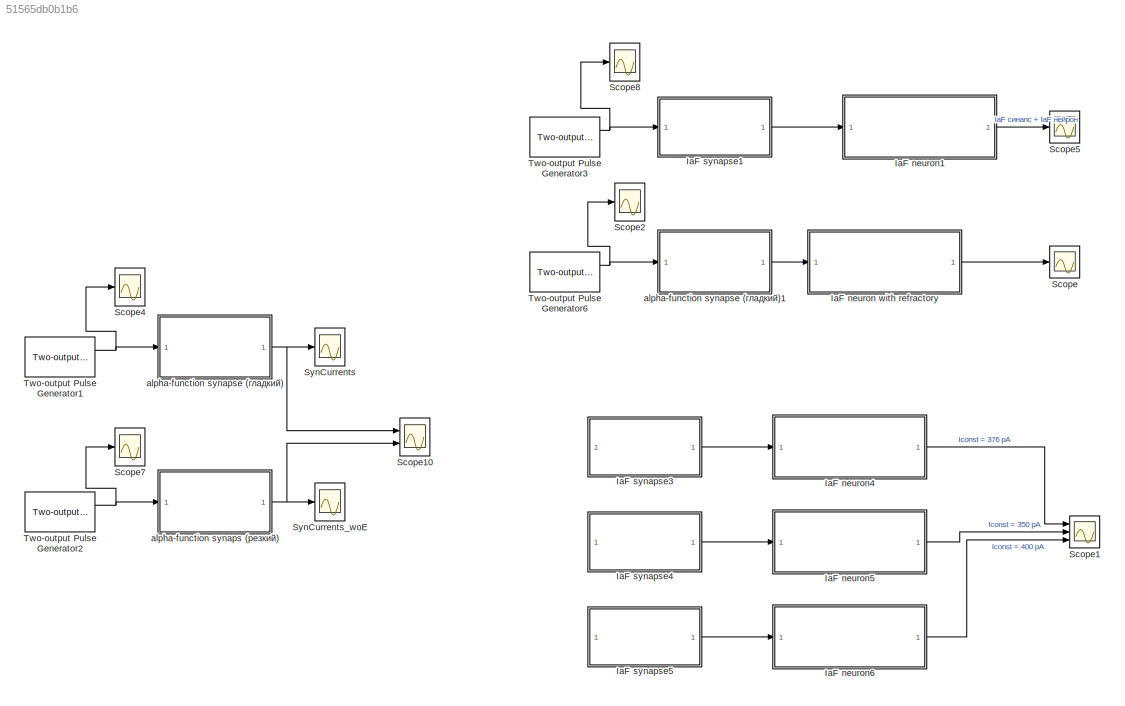
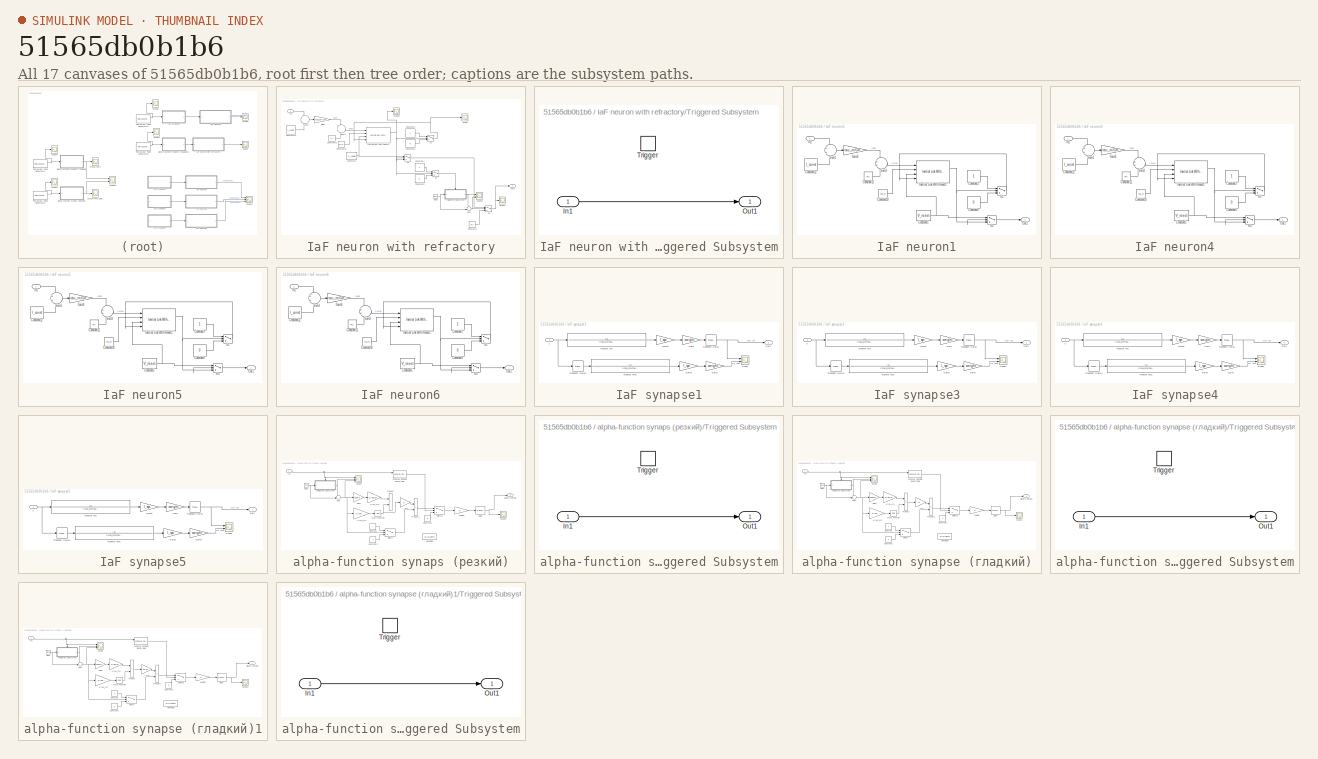
[diagram: thumbnail index - all 17 canvases of the model, root first then tree order]
MODEL slx_51565db0b1b6
KIND model
CONFIG AbsTol = auto
CONFIG EnableMultiTasking = off
CONFIG FixedStep = 0.0001
CONFIG MaxStep = auto
CONFIG MinStep = auto
CONFIG RelTol = 1e-3
CONFIG SampleTimeConstraint = Unconstrained
CONFIG SolverName = FixedStepAuto
CONFIG StartTime = 0.0
CONFIG StopTime = 0.4
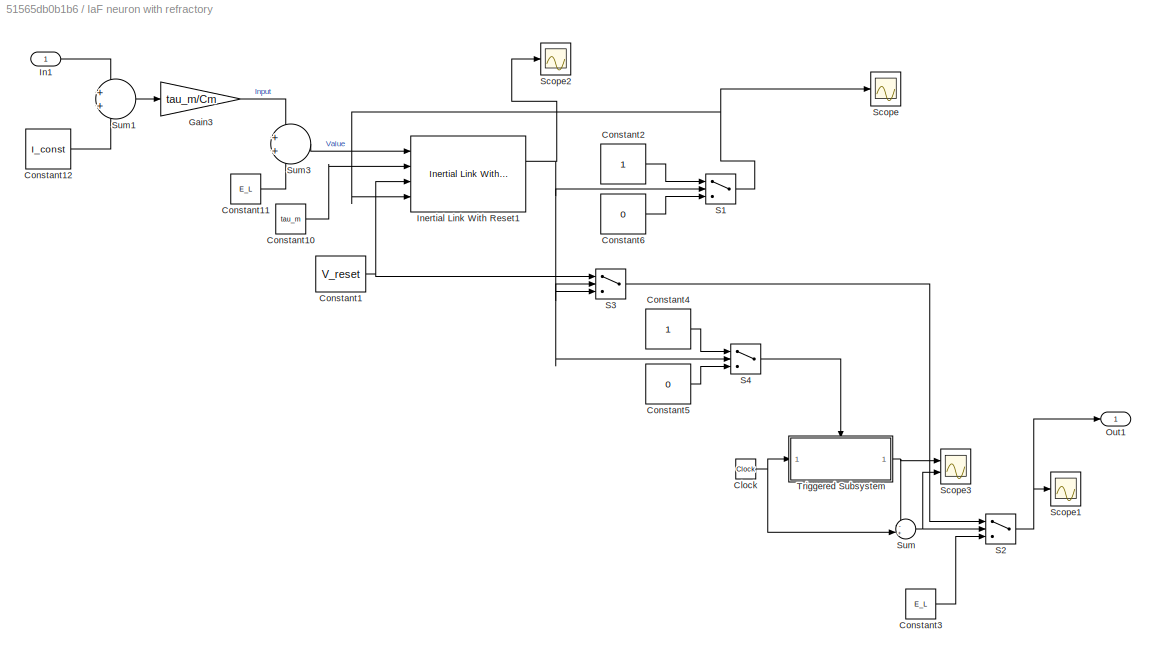
BLOCK [SubSystem] IaF neuron with refractory
  Commented = on
  Ports = [1, 1]
  RequestExecContextInheritance = off
BLOCK [Clock] IaF neuron with refractory/Clock
BLOCK [Constant] IaF neuron with refractory/Constant1
  Value = V_reset
BLOCK [Constant] IaF neuron with refractory/Constant10
  Value = tau_m
BLOCK [Constant] IaF neuron with refractory/Constant11
  Value = E_L
BLOCK [Constant] IaF neuron with refractory/Constant12
  Value = I_const
BLOCK [Constant] IaF neuron with refractory/Constant2
BLOCK [Constant] IaF neuron with refractory/Constant3
  Value = E_L
BLOCK [Constant] IaF neuron with refractory/Constant4
BLOCK [Constant] IaF neuron with refractory/Constant5
  Value = 0
BLOCK [Constant] IaF neuron with refractory/Constant6
  Value = 0
BLOCK [Gain] IaF neuron with refractory/Gain3
  Gain = tau_m/Cm
BLOCK [Inport] IaF neuron with refractory/In1
BLOCK [Reference] IaF neuron with refractory/Inertial Link With Reset1  REF=NeuroModelerLibrary/Support/Inertial Link With Reset
  Ports = [4, 2]
  SourceBlock = NeuroModelerLibrary/Support/Inertial Link With Reset
  SourceType = SubSystem
BLOCK [Outport] IaF neuron with refractory/Out1
BLOCK [Switch] IaF neuron with refractory/S1
  Threshold = V_th
BLOCK [Switch] IaF neuron with refractory/S2
  Threshold = tau_ref
BLOCK [Switch] IaF neuron with refractory/S3
  Threshold = V_th
BLOCK [Switch] IaF neuron with refractory/S4
  Threshold = V_th - 0.000005
BLOCK [Scope] IaF neuron with refractory/Scope
  Floating = off
  NumInputPorts = 1
  Ports = [1]
  ScopeSpecificationString = Simulink.scopes.TimeScopeBlockCfg('CurrentConfiguration', extmgr.ConfigurationSet(extmgr.Configuration('Core','General UI',true),extmgr.Configuration('Core','Source UI',true),extmgr.Configuration('Sources','WiredSimulink',true,'DataLoggingVariableName','ScopeData4'),extmgr.Configuration('Visuals','Time Domain',true,'SerializedDisplays',{struct('MinYLimReal','-1.00000','MaxYLimReal','1.00000','YLab...<+1412ch>
BLOCK [Scope] IaF neuron with refractory/Scope1
  Floating = off
  NumInputPorts = 1
  Ports = [1]
  ScopeSpecificationString = Simulink.scopes.TimeScopeBlockCfg('CurrentConfiguration', extmgr.ConfigurationSet(extmgr.Configuration('Core','General UI',true),extmgr.Configuration('Core','Source UI',true),extmgr.Configuration('Sources','WiredSimulink',true,'DataLoggingVariableName','ScopeData5'),extmgr.Configuration('Visuals','Time Domain',true,'SerializedDisplays',{struct('MinYLimReal','-0.07187','MaxYLimReal','-0.05313','YLa...<+1460ch>
BLOCK [Scope] IaF neuron with refractory/Scope2
  Floating = off
  NumInputPorts = 1
  Ports = [1]
  ScopeSpecificationString = Simulink.scopes.TimeScopeBlockCfg('CurrentConfiguration', extmgr.ConfigurationSet(extmgr.Configuration('Core','General UI',true),extmgr.Configuration('Core','Source UI',true),extmgr.Configuration('Sources','WiredSimulink',true,'DataLoggingVariableName','ScopeData6'),extmgr.Configuration('Visuals','Time Domain',true,'SerializedDisplays',{struct('MinYLimReal','-0.055043','MaxYLimReal','-0.054982','Y...<+1467ch>
BLOCK [Scope] IaF neuron with refractory/Scope3
  Floating = off
  NumInputPorts = 2
  Ports = [2]
  ScopeSpecificationString = Simulink.scopes.TimeScopeBlockCfg('CurrentConfiguration', extmgr.ConfigurationSet(extmgr.Configuration('Core','General UI',true),extmgr.Configuration('Core','Source UI',true),extmgr.Configuration('Sources','WiredSimulink',true,'DataLoggingVariableName','ScopeData7'),extmgr.Configuration('Visuals','Time Domain',true,'SerializedDisplays',{struct('MinYLimReal','-0.05','MaxYLimReal','0.45','YLabelReal...<+1463ch>
BLOCK [Sum] IaF neuron with refractory/Sum
  Inputs = -+|
  Ports = [2, 1]
BLOCK [Sum] IaF neuron with refractory/Sum1
  Ports = [2, 1]
BLOCK [Sum] IaF neuron with refractory/Sum3
  Ports = [2, 1]
BLOCK [SubSystem] IaF neuron with refractory/Triggered Subsystem
  Ports = [1, 1, 0, 1]
  RequestExecContextInheritance = off
  TreatAsAtomicUnit = on
BLOCK [Inport] IaF neuron with refractory/Triggered Subsystem/In1
BLOCK [Outport] IaF neuron with refractory/Triggered Subsystem/Out1
BLOCK [TriggerPort] IaF neuron with refractory/Triggered Subsystem/Trigger
  Ports = []
  StatesWhenEnabling = held
  VariantControl = Variant
BLOCK [SubSystem] IaF neuron1
  Commented = on
  Ports = [1, 1]
  RequestExecContextInheritance = off
BLOCK [Constant] IaF neuron1/Constant1
  Value = V_reset
BLOCK [Constant] IaF neuron1/Constant10
  Value = tau_m
BLOCK [Constant] IaF neuron1/Constant11
  Value = E_L
BLOCK [Constant] IaF neuron1/Constant12
  Value = I_const
BLOCK [Constant] IaF neuron1/Constant2
BLOCK [Constant] IaF neuron1/Constant6
  Value = 0
BLOCK [Gain] IaF neuron1/Gain3
  Gain = tau_m/Cm
BLOCK [Inport] IaF neuron1/In1
BLOCK [Reference] IaF neuron1/Inertial Link With Reset1  REF=NeuroModelerLibrary/Support/Inertial Link With Reset
  Ports = [4, 2]
  SourceBlock = NeuroModelerLibrary/Support/Inertial Link With Reset
  SourceType = SubSystem
BLOCK [Outport] IaF neuron1/Out1
BLOCK [Switch] IaF neuron1/S1
  Threshold = V_th
BLOCK [Switch] IaF neuron1/S3
  Threshold = V_th
BLOCK [Sum] IaF neuron1/Sum1
  Ports = [2, 1]
BLOCK [Sum] IaF neuron1/Sum3
  Ports = [2, 1]
BLOCK [SubSystem] IaF neuron4
  Commented = on
  Ports = [1, 1]
  RequestExecContextInheritance = off
BLOCK [Constant] IaF neuron4/Constant1
  Value = V_reset
BLOCK [Constant] IaF neuron4/Constant10
  Value = tau_m
BLOCK [Constant] IaF neuron4/Constant11
  Value = E_L
BLOCK [Constant] IaF neuron4/Constant12
  Value = I_const
BLOCK [Constant] IaF neuron4/Constant2
BLOCK [Constant] IaF neuron4/Constant6
  Value = 0
BLOCK [Gain] IaF neuron4/Gain3
  Gain = tau_m/Cm
BLOCK [Inport] IaF neuron4/In1
BLOCK [Reference] IaF neuron4/Inertial Link With Reset1  REF=NeuroModelerLibrary/Support/Inertial Link With Reset
  Ports = [4, 2]
  SourceBlock = NeuroModelerLibrary/Support/Inertial Link With Reset
  SourceType = SubSystem
BLOCK [Outport] IaF neuron4/Out1
BLOCK [Switch] IaF neuron4/S1
  Threshold = V_th
BLOCK [Switch] IaF neuron4/S3
  Threshold = V_th
BLOCK [Sum] IaF neuron4/Sum1
  Ports = [2, 1]
BLOCK [Sum] IaF neuron4/Sum3
  Ports = [2, 1]
BLOCK [SubSystem] IaF neuron5
  Commented = on
  Ports = [1, 1]
  RequestExecContextInheritance = off
BLOCK [Constant] IaF neuron5/Constant1
  Value = V_reset
BLOCK [Constant] IaF neuron5/Constant10
  Value = tau_m
BLOCK [Constant] IaF neuron5/Constant11
  Value = E_L
BLOCK [Constant] IaF neuron5/Constant12
  Value = I_const
BLOCK [Constant] IaF neuron5/Constant2
BLOCK [Constant] IaF neuron5/Constant6
  Value = 0
BLOCK [Gain] IaF neuron5/Gain3
  Gain = tau_m/Cm
BLOCK [Inport] IaF neuron5/In1
BLOCK [Reference] IaF neuron5/Inertial Link With Reset1  REF=NeuroModelerLibrary/Support/Inertial Link With Reset
  Ports = [4, 2]
  SourceBlock = NeuroModelerLibrary/Support/Inertial Link With Reset
  SourceType = SubSystem
BLOCK [Outport] IaF neuron5/Out1
BLOCK [Switch] IaF neuron5/S1
  Threshold = V_th
BLOCK [Switch] IaF neuron5/S3
  Threshold = V_th
BLOCK [Sum] IaF neuron5/Sum1
  Ports = [2, 1]
BLOCK [Sum] IaF neuron5/Sum3
  Ports = [2, 1]
BLOCK [SubSystem] IaF neuron6
  Commented = on
  Ports = [1, 1]
  RequestExecContextInheritance = off
BLOCK [Constant] IaF neuron6/Constant1
  Value = V_reset
BLOCK [Constant] IaF neuron6/Constant10
  Value = tau_m
BLOCK [Constant] IaF neuron6/Constant11
  Value = E_L
BLOCK [Constant] IaF neuron6/Constant12
  Value = I_const
BLOCK [Constant] IaF neuron6/Constant2
BLOCK [Constant] IaF neuron6/Constant6
  Value = 0
BLOCK [Gain] IaF neuron6/Gain3
  Gain = tau_m/Cm
BLOCK [Inport] IaF neuron6/In1
BLOCK [Reference] IaF neuron6/Inertial Link With Reset1  REF=NeuroModelerLibrary/Support/Inertial Link With Reset
  Ports = [4, 2]
  SourceBlock = NeuroModelerLibrary/Support/Inertial Link With Reset
  SourceType = SubSystem
BLOCK [Outport] IaF neuron6/Out1
BLOCK [Switch] IaF neuron6/S1
  Threshold = V_th
BLOCK [Switch] IaF neuron6/S3
  Threshold = V_th
BLOCK [Sum] IaF neuron6/Sum1
  Ports = [2, 1]
BLOCK [Sum] IaF neuron6/Sum3
  Ports = [2, 1]
BLOCK [SubSystem] IaF synapse1
  Commented = on
  Ports = [1, 1]
  RequestExecContextInheritance = off
BLOCK [Gain] IaF synapse1/Gain
  Gain = weight
BLOCK [Gain] IaF synapse1/Gain1
  Gain = weight
BLOCK [Gain] IaF synapse1/Gain2
  Gain = I_syn
BLOCK [Gain] IaF synapse1/Gain6
  Gain = I_syn
BLOCK [Outport] IaF synapse1/Out1
BLOCK [Scope] IaF synapse1/Scope
  Floating = off
  NumInputPorts = 2
  Ports = [2]
  ScopeSpecificationString = Simulink.scopes.TimeScopeBlockCfg('CurrentConfiguration', extmgr.ConfigurationSet(extmgr.Configuration('Core','General UI',true),extmgr.Configuration('Core','Source UI',true),extmgr.Configuration('Sources','WiredSimulink',true,'DataLoggingVariableName','ScopeData2'),extmgr.Configuration('Visuals','Time Domain',true,'SerializedDisplays',{struct('MinYLimReal','-0.0000000002','MaxYLimReal','0.0000000...<+1515ch>  <repeated x4 — deduplicated; at blocks: Scope>
BLOCK [TransferFcn] IaF synapse1/Transfer Fcn
  Denominator = [(tau_syn*tau_syn)  (2*tau_syn)  1]
BLOCK [TransferFcn] IaF synapse1/Transfer Fcn1
  Denominator = [(tau_syn*tau_syn)  (2*tau_syn)  1]
BLOCK [TransportDelay] IaF synapse1/Transport Delay
  DelayTime = delay
  Ports = [1, 1]
BLOCK [TransportDelay] IaF synapse1/Transport Delay1
  DelayTime = delay
  Ports = [1, 1]
BLOCK [Inport] IaF synapse1/u
BLOCK [SubSystem] IaF synapse3
  Commented = on
  Ports = [1, 1]
  RequestExecContextInheritance = off
BLOCK [Gain] IaF synapse3/Gain
  Gain = weight
BLOCK [Gain] IaF synapse3/Gain1
  Gain = weight
BLOCK [Gain] IaF synapse3/Gain2
  Gain = I_syn
BLOCK [Gain] IaF synapse3/Gain6
  Gain = I_syn
BLOCK [Outport] IaF synapse3/Out1
BLOCK [Scope] IaF synapse3/Scope
  Floating = off
  NumInputPorts = 2
  Ports = [2]
BLOCK [TransferFcn] IaF synapse3/Transfer Fcn
  Denominator = [(tau_syn*tau_syn)  (2*tau_syn)  1]
BLOCK [TransferFcn] IaF synapse3/Transfer Fcn1
  Denominator = [(tau_syn*tau_syn)  (2*tau_syn)  1]
BLOCK [TransportDelay] IaF synapse3/Transport Delay
  DelayTime = delay
  Ports = [1, 1]
BLOCK [TransportDelay] IaF synapse3/Transport Delay1
  DelayTime = delay
  Ports = [1, 1]
BLOCK [Inport] IaF synapse3/u
BLOCK [SubSystem] IaF synapse4
  Commented = on
  Ports = [1, 1]
  RequestExecContextInheritance = off
BLOCK [Gain] IaF synapse4/Gain
  Gain = weight
BLOCK [Gain] IaF synapse4/Gain1
  Gain = weight
BLOCK [Gain] IaF synapse4/Gain2
  Gain = I_syn
BLOCK [Gain] IaF synapse4/Gain6
  Gain = I_syn
BLOCK [Outport] IaF synapse4/Out1
BLOCK [Scope] IaF synapse4/Scope
  Floating = off
  NumInputPorts = 2
  Ports = [2]
BLOCK [TransferFcn] IaF synapse4/Transfer Fcn
  Denominator = [(tau_syn*tau_syn)  (2*tau_syn)  1]
BLOCK [TransferFcn] IaF synapse4/Transfer Fcn1
  Denominator = [(tau_syn*tau_syn)  (2*tau_syn)  1]
BLOCK [TransportDelay] IaF synapse4/Transport Delay
  DelayTime = delay
  Ports = [1, 1]
BLOCK [TransportDelay] IaF synapse4/Transport Delay1
  DelayTime = delay
  Ports = [1, 1]
BLOCK [Inport] IaF synapse4/u
BLOCK [SubSystem] IaF synapse5
  Commented = on
  Ports = [1, 1]
  RequestExecContextInheritance = off
BLOCK [Gain] IaF synapse5/Gain
  Gain = weight
BLOCK [Gain] IaF synapse5/Gain1
  Gain = weight
BLOCK [Gain] IaF synapse5/Gain2
  Gain = I_syn
BLOCK [Gain] IaF synapse5/Gain6
  Gain = I_syn
BLOCK [Outport] IaF synapse5/Out1
BLOCK [Scope] IaF synapse5/Scope
  Floating = off
  NumInputPorts = 2
  Ports = [2]
BLOCK [TransferFcn] IaF synapse5/Transfer Fcn
  Denominator = [(tau_syn*tau_syn)  (2*tau_syn)  1]
BLOCK [TransferFcn] IaF synapse5/Transfer Fcn1
  Denominator = [(tau_syn*tau_syn)  (2*tau_syn)  1]
BLOCK [TransportDelay] IaF synapse5/Transport Delay
  DelayTime = delay
  Ports = [1, 1]
BLOCK [TransportDelay] IaF synapse5/Transport Delay1
  DelayTime = delay
  Ports = [1, 1]
BLOCK [Inport] IaF synapse5/u
BLOCK [Scope] Scope
  Commented = on
  Floating = off
  NumInputPorts = 1
  Ports = [1]
  ScopeSpecificationString = Simulink.scopes.TimeScopeBlockCfg('CurrentConfiguration', extmgr.ConfigurationSet(extmgr.Configuration('Core','General UI',true),extmgr.Configuration('Core','Source UI',true),extmgr.Configuration('Sources','WiredSimulink',true,'DataLoggingVariableName','ScopeData1'),extmgr.Configuration('Visuals','Time Domain',true,'SerializedDisplays',{struct('MinYLimReal','-0.07187','MaxYLimReal','-0.05313','YLa...<+1493ch>
BLOCK [Scope] Scope1
  Commented = on
  Floating = off
  NumInputPorts = 3
  Ports = [3]
  ScopeSpecificationString = Simulink.scopes.TimeScopeBlockCfg('CurrentConfiguration', extmgr.ConfigurationSet(extmgr.Configuration('Core','General UI',true),extmgr.Configuration('Core','Source UI',true),extmgr.Configuration('Sources','WiredSimulink',true,'DataLoggingVariableName','Voltages','DataLogging',true,'DataLoggingSaveFormat','StructureWithTime'),extmgr.Configuration('Visuals','Time Domain',true,'SerializedDisplays',{...<+2882ch>
BLOCK [Scope] Scope10
  Floating = off
  NumInputPorts = 2
  Ports = [2]
  ScopeSpecificationString = Simulink.scopes.TimeScopeBlockCfg('CurrentConfiguration', extmgr.ConfigurationSet(extmgr.Configuration('Core','General UI',true),extmgr.Configuration('Core','Source UI',true),extmgr.Configuration('Sources','WiredSimulink',true,'DataLoggingVariableName','ScopeData1'),extmgr.Configuration('Visuals','Time Domain',true,'SerializedDisplays',{struct('MinYLimReal','-0.125','MaxYLimReal','1.125','YLabelRe...<+1535ch>
BLOCK [Scope] Scope2
  Commented = on
  Floating = off
  NumInputPorts = 1
  Ports = [1]
  ScopeSpecificationString = Simulink.scopes.TimeScopeBlockCfg('CurrentConfiguration', extmgr.ConfigurationSet(extmgr.Configuration('Core','General UI',true),extmgr.Configuration('Core','Source UI',true),extmgr.Configuration('Sources','WiredSimulink',true,'DataLoggingVariableName','ScopeData1'),extmgr.Configuration('Visuals','Time Domain',true,'SerializedDisplays',{struct('MinYLimReal','-0.125','MaxYLimReal','1.125','YLabelRe...<+1499ch>
BLOCK [Scope] Scope4
  Floating = off
  NumInputPorts = 1
  Ports = [1]
  ScopeSpecificationString = Simulink.scopes.TimeScopeBlockCfg('CurrentConfiguration', extmgr.ConfigurationSet(extmgr.Configuration('Core','General UI',true),extmgr.Configuration('Core','Source UI',true),extmgr.Configuration('Sources','WiredSimulink',true,'DataLoggingVariableName','ScopeData1'),extmgr.Configuration('Visuals','Time Domain',true,'SerializedDisplays',{struct('MinYLimReal','-0.125','MaxYLimReal','1.125','YLabelRe...<+1499ch>
BLOCK [Scope] Scope5
  Commented = on
  Floating = off
  NumInputPorts = 1
  Ports = [1]
  ScopeSpecificationString = Simulink.scopes.TimeScopeBlockCfg('CurrentConfiguration', extmgr.ConfigurationSet(extmgr.Configuration('Core','General UI',true),extmgr.Configuration('Core','Source UI',true),extmgr.Configuration('Sources','WiredSimulink',true,'DataLoggingVariableName','ScopeData2'),extmgr.Configuration('Visuals','Time Domain',true),extmgr.Configuration('Tools','Plot Navigation',true),extmgr.Configuration('Tools',...<+40ch>
BLOCK [Scope] Scope7
  Floating = off
  NumInputPorts = 1
  Ports = [1]
  ScopeSpecificationString = Simulink.scopes.TimeScopeBlockCfg('CurrentConfiguration', extmgr.ConfigurationSet(extmgr.Configuration('Core','General UI',true),extmgr.Configuration('Core','Source UI',true),extmgr.Configuration('Sources','WiredSimulink',true,'DataLoggingVariableName','ScopeData2'),extmgr.Configuration('Visuals','Time Domain',true,'SerializedDisplays',{struct('MinYLimReal','-0.125','MaxYLimReal','1.125','YLabelRe...<+1499ch>
BLOCK [Scope] Scope8
  Commented = on
  Floating = off
  NumInputPorts = 1
  Ports = [1]
  ScopeSpecificationString = Simulink.scopes.TimeScopeBlockCfg('CurrentConfiguration', extmgr.ConfigurationSet(extmgr.Configuration('Core','General UI',true),extmgr.Configuration('Core','Source UI',true),extmgr.Configuration('Sources','WiredSimulink',true,'DataLoggingVariableName','ScopeData3'),extmgr.Configuration('Visuals','Time Domain',true,'SerializedDisplays',{struct('MinYLimReal','-0.125','MaxYLimReal','1.125','YLabelRe...<+1499ch>
BLOCK [Scope] SynCurrents
  Floating = off
  NumInputPorts = 1
  Ports = [1]
  ScopeSpecificationString = Simulink.scopes.TimeScopeBlockCfg('CurrentConfiguration', extmgr.ConfigurationSet(extmgr.Configuration('Core','General UI',true),extmgr.Configuration('Core','Source UI',true),extmgr.Configuration('Sources','WiredSimulink',true,'DataLoggingVariableName','SynCurrents','DataLogging',true,'DataLoggingSaveFormat','StructureWithTime'),extmgr.Configuration('Visuals','Time Domain',true,'SerializedDisplays...<+1566ch>
BLOCK [Scope] SynCurrents_woE
  Floating = off
  NumInputPorts = 1
  Ports = [1]
  ScopeSpecificationString = Simulink.scopes.TimeScopeBlockCfg('CurrentConfiguration', extmgr.ConfigurationSet(extmgr.Configuration('Core','General UI',true),extmgr.Configuration('Core','Source UI',true),extmgr.Configuration('Sources','WiredSimulink',true,'DataLoggingVariableName','SynCurrents_woE','DataLogging',true,'DataLoggingSaveFormat','StructureWithTime'),extmgr.Configuration('Visuals','Time Domain',true,'SerializedDisp...<+1568ch>
BLOCK [Reference] Two-output Pulse Generator1  REF=NeuroModelerLibrary/Support/Two-output
Pulse Generator
  Ports = [0, 2]
  SourceBlock = NeuroModelerLibrary/Support/Two-output\nPulse Generator
BLOCK [Reference] Two-output Pulse Generator2  REF=NeuroModelerLibrary/Support/Two-output
Pulse Generator
  Ports = [0, 2]
  SourceBlock = NeuroModelerLibrary/Support/Two-output\nPulse Generator
BLOCK [Reference] Two-output Pulse Generator3  REF=NeuroModelerLibrary/Support/Two-output
Pulse Generator
  Commented = on
  Ports = [0, 2]
  SourceBlock = NeuroModelerLibrary/Support/Two-output\nPulse Generator
BLOCK [Reference] Two-output Pulse Generator6  REF=NeuroModelerLibrary/Support/Two-output
Pulse Generator
  Commented = on
  Ports = [0, 2]
  SourceBlock = NeuroModelerLibrary/Support/Two-output\nPulse Generator
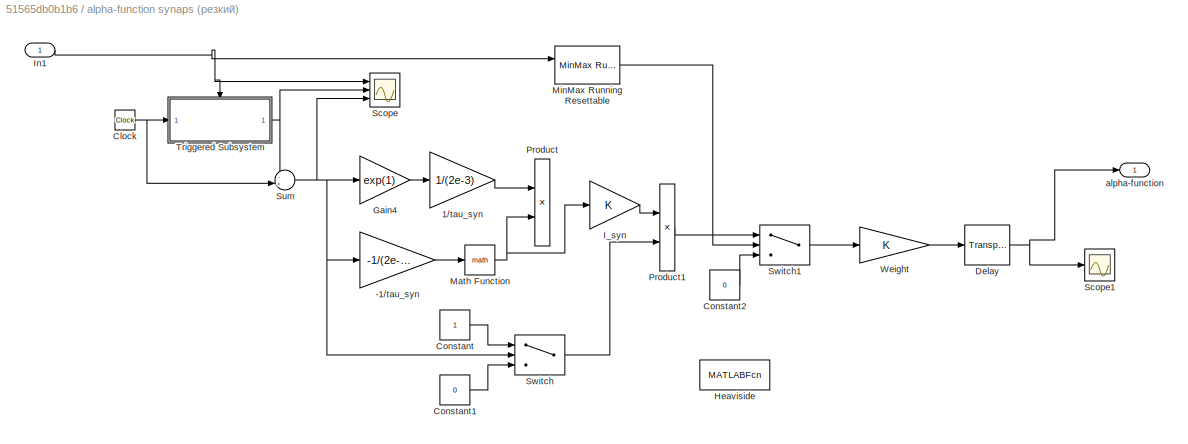
BLOCK [SubSystem] alpha-function synaps (резкий)
  Ports = [1, 1]
  RequestExecContextInheritance = off
BLOCK [Gain] alpha-function synaps (резкий)/-1//tau_syn
  Gain = -1/(2e-3)
BLOCK [Gain] alpha-function synaps (резкий)/1//tau_syn
  Gain = 1/(2e-3)
BLOCK [Clock] alpha-function synaps (резкий)/Clock
BLOCK [Constant] alpha-function synaps (резкий)/Constant
BLOCK [Constant] alpha-function synaps (резкий)/Constant1
  Value = 0
BLOCK [Constant] alpha-function synaps (резкий)/Constant2
  Value = 0
BLOCK [TransportDelay] alpha-function synaps (резкий)/Delay
  DelayTime = 0.001
  Ports = [1, 1]
BLOCK [Gain] alpha-function synaps (резкий)/Gain4
  Gain = exp(1)
BLOCK [MATLABFcn] alpha-function synaps (резкий)/Heaviside
  Commented = on
  MATLABFcn = heaviside(u)
  Output1D = off
  OutputSignalType = real
  Ports = [1, 1]
BLOCK [Gain] alpha-function synaps (резкий)/I_syn
BLOCK [Inport] alpha-function synaps (резкий)/In1
BLOCK [Math] alpha-function synaps (резкий)/Math Function
  Ports = [1, 1]
BLOCK [Reference] alpha-function synaps (резкий)/MinMax Running Resettable  REF=simulink/Math
Operations/MinMax
Running
Resettable
  Ports = [2, 1]
  SourceBlock = simulink/Math\nOperations/MinMax\nRunning\nResettable
  SourceProductBaseCode = SL
  SourceType = MinMax Running Resettable
BLOCK [Product] alpha-function synaps (резкий)/Product
  Ports = [2, 1]
BLOCK [Product] alpha-function synaps (резкий)/Product1
  Ports = [2, 1]
BLOCK [Scope] alpha-function synaps (резкий)/Scope
  Floating = off
  NumInputPorts = 3
  Ports = [3]
  ScopeSpecificationString = Simulink.scopes.TimeScopeBlockCfg('CurrentConfiguration', extmgr.ConfigurationSet(extmgr.Configuration('Core','General UI',true),extmgr.Configuration('Core','Source UI',true),extmgr.Configuration('Sources','WiredSimulink',true,'DataLoggingVariableName','ScopeData3'),extmgr.Configuration('Visuals','Time Domain',true,'SerializedDisplays',{struct('MinYLimReal','-1.00000','MaxYLimReal','1.00000','YLab...<+2742ch>  <repeated x3 — deduplicated; at blocks: Scope>
BLOCK [Scope] alpha-function synaps (резкий)/Scope1
  Floating = off
  NumInputPorts = 1
  Ports = [1]
  ScopeSpecificationString = Simulink.scopes.TimeScopeBlockCfg('CurrentConfiguration', extmgr.ConfigurationSet(extmgr.Configuration('Core','General UI',true),extmgr.Configuration('Core','Source UI',true),extmgr.Configuration('Sources','WiredSimulink',true,'DataLoggingVariableName','ScopeData4'),extmgr.Configuration('Visuals','Time Domain',true,'SerializedDisplays',{struct('MinYLimReal','-0.000000001','MaxYLimReal','0.00000001...<+1503ch>  <repeated x3 — deduplicated; at blocks: Scope1>
BLOCK [Sum] alpha-function synaps (резкий)/Sum
  Inputs = -+|
  Ports = [2, 1]
BLOCK [Switch] alpha-function synaps (резкий)/Switch
  Criteria = u2 > Threshold
  InputSameDT = off
  SaturateOnIntegerOverflow = off
BLOCK [Switch] alpha-function synaps (резкий)/Switch1
  Criteria = u2 > Threshold
  InputSameDT = off
  SaturateOnIntegerOverflow = off
BLOCK [SubSystem] alpha-function synaps (резкий)/Triggered Subsystem
  Ports = [1, 1, 0, 1]
  RequestExecContextInheritance = off
  TreatAsAtomicUnit = on
BLOCK [Inport] alpha-function synaps (резкий)/Triggered Subsystem/In1
BLOCK [Outport] alpha-function synaps (резкий)/Triggered Subsystem/Out1
BLOCK [TriggerPort] alpha-function synaps (резкий)/Triggered Subsystem/Trigger
  Ports = []
  StatesWhenEnabling = held
  VariantControl = Variant
BLOCK [Gain] alpha-function synaps (резкий)/Weight
BLOCK [Outport] alpha-function synaps (резкий)/alpha-function
BLOCK [SubSystem] alpha-function synapse (гладкий)
  Ports = [1, 1]
  RequestExecContextInheritance = off
BLOCK [Gain] alpha-function synapse (гладкий)/-1//tau_syn
  Gain = -1/(2e-3)
BLOCK [Gain] alpha-function synapse (гладкий)/1//tau_syn
  Gain = 1/(2e-3)
BLOCK [Clock] alpha-function synapse (гладкий)/Clock
BLOCK [Constant] alpha-function synapse (гладкий)/Constant
BLOCK [Constant] alpha-function synapse (гладкий)/Constant1
  Value = 0
BLOCK [Constant] alpha-function synapse (гладкий)/Constant2
  Value = 0
BLOCK [TransportDelay] alpha-function synapse (гладкий)/Delay
  DelayTime = 0.001
  Ports = [1, 1]
BLOCK [Gain] alpha-function synapse (гладкий)/Gain4
  Gain = exp(1)
BLOCK [MATLABFcn] alpha-function synapse (гладкий)/Heaviside
  Commented = on
  MATLABFcn = heaviside(u)
  Output1D = off
  OutputSignalType = real
  Ports = [1, 1]
BLOCK [Gain] alpha-function synapse (гладкий)/I_syn
BLOCK [Inport] alpha-function synapse (гладкий)/In1
BLOCK [Math] alpha-function synapse (гладкий)/Math Function
  Ports = [1, 1]
BLOCK [Reference] alpha-function synapse (гладкий)/MinMax Running Resettable  REF=simulink/Math
Operations/MinMax
Running
Resettable
  Ports = [2, 1]
  SourceBlock = simulink/Math\nOperations/MinMax\nRunning\nResettable
  SourceProductBaseCode = SL
  SourceType = MinMax Running Resettable
BLOCK [Product] alpha-function synapse (гладкий)/Product
  Ports = [2, 1]
BLOCK [Product] alpha-function synapse (гладкий)/Product1
  Ports = [2, 1]
BLOCK [Scope] alpha-function synapse (гладкий)/Scope
  Floating = off
  NumInputPorts = 3
  Ports = [3]
BLOCK [Scope] alpha-function synapse (гладкий)/Scope1
  Floating = off
  NumInputPorts = 1
  Ports = [1]
BLOCK [Sum] alpha-function synapse (гладкий)/Sum
  Inputs = -+|
  Ports = [2, 1]
BLOCK [Switch] alpha-function synapse (гладкий)/Switch
  Criteria = u2 > Threshold
  InputSameDT = off
  SaturateOnIntegerOverflow = off
BLOCK [Switch] alpha-function synapse (гладкий)/Switch1
  Criteria = u2 > Threshold
  InputSameDT = off
  SaturateOnIntegerOverflow = off
BLOCK [SubSystem] alpha-function synapse (гладкий)/Triggered Subsystem
  Ports = [1, 1, 0, 1]
  RequestExecContextInheritance = off
  TreatAsAtomicUnit = on
BLOCK [Inport] alpha-function synapse (гладкий)/Triggered Subsystem/In1
BLOCK [Outport] alpha-function synapse (гладкий)/Triggered Subsystem/Out1
BLOCK [TriggerPort] alpha-function synapse (гладкий)/Triggered Subsystem/Trigger
  Ports = []
  StatesWhenEnabling = held
  VariantControl = Variant
BLOCK [Gain] alpha-function synapse (гладкий)/Weight
BLOCK [Outport] alpha-function synapse (гладкий)/alpha-function
BLOCK [SubSystem] alpha-function synapse (гладкий)1
  Commented = on
  Ports = [1, 1]
  RequestExecContextInheritance = off
BLOCK [Gain] alpha-function synapse (гладкий)1/-1//tau_syn
  Gain = -1/(2e-3)
BLOCK [Gain] alpha-function synapse (гладкий)1/1//tau_syn
  Gain = 1/(2e-3)
BLOCK [Clock] alpha-function synapse (гладкий)1/Clock
BLOCK [Constant] alpha-function synapse (гладкий)1/Constant
BLOCK [Constant] alpha-function synapse (гладкий)1/Constant1
  Value = 0
BLOCK [Constant] alpha-function synapse (гладкий)1/Constant2
  Value = 0
BLOCK [TransportDelay] alpha-function synapse (гладкий)1/Delay
  DelayTime = 0.001
  Ports = [1, 1]
BLOCK [Gain] alpha-function synapse (гладкий)1/Gain4
  Gain = exp(1)
BLOCK [MATLABFcn] alpha-function synapse (гладкий)1/Heaviside
  Commented = on
  MATLABFcn = heaviside(u)
  Output1D = off
  OutputSignalType = real
  Ports = [1, 1]
BLOCK [Gain] alpha-function synapse (гладкий)1/I_syn
  Gain = 1e-12
BLOCK [Inport] alpha-function synapse (гладкий)1/In1
BLOCK [Math] alpha-function synapse (гладкий)1/Math Function
  Ports = [1, 1]
BLOCK [Reference] alpha-function synapse (гладкий)1/MinMax Running Resettable  REF=simulink/Math
Operations/MinMax
Running
Resettable
  Ports = [2, 1]
  SourceBlock = simulink/Math\nOperations/MinMax\nRunning\nResettable
  SourceProductBaseCode = SL
  SourceType = MinMax Running Resettable
BLOCK [Product] alpha-function synapse (гладкий)1/Product
  Ports = [2, 1]
BLOCK [Product] alpha-function synapse (гладкий)1/Product1
  Ports = [2, 1]
BLOCK [Scope] alpha-function synapse (гладкий)1/Scope
  Floating = off
  NumInputPorts = 3
  Ports = [3]
BLOCK [Scope] alpha-function synapse (гладкий)1/Scope1
  Floating = off
  NumInputPorts = 1
  Ports = [1]
BLOCK [Sum] alpha-function synapse (гладкий)1/Sum
  Inputs = -+|
  Ports = [2, 1]
BLOCK [Switch] alpha-function synapse (гладкий)1/Switch
  Criteria = u2 > Threshold
  InputSameDT = off
  SaturateOnIntegerOverflow = off
BLOCK [Switch] alpha-function synapse (гладкий)1/Switch1
  Criteria = u2 > Threshold
  InputSameDT = off
  SaturateOnIntegerOverflow = off
BLOCK [SubSystem] alpha-function synapse (гладкий)1/Triggered Subsystem
  Ports = [1, 1, 0, 1]
  RequestExecContextInheritance = off
  TreatAsAtomicUnit = on
BLOCK [Inport] alpha-function synapse (гладкий)1/Triggered Subsystem/In1
BLOCK [Outport] alpha-function synapse (гладкий)1/Triggered Subsystem/Out1
BLOCK [TriggerPort] alpha-function synapse (гладкий)1/Triggered Subsystem/Trigger
  Ports = []
  StatesWhenEnabling = held
  VariantControl = Variant
BLOCK [Gain] alpha-function synapse (гладкий)1/Weight
BLOCK [Outport] alpha-function synapse (гладкий)1/alpha-function
NET IaF neuron with refractory/Clock:1 -> IaF neuron with refractory/Sum:2, IaF neuron with refractory/Triggered Subsystem:1
LINE IaF neuron with refractory/Constant10:1 -> IaF neuron with refractory/Inertial Link With Reset1:2
LINE IaF neuron with refractory/Constant11:1 -> IaF neuron with refractory/Sum3:2
LINE IaF neuron with refractory/Constant12:1 -> IaF neuron with refractory/Sum1:2
NET IaF neuron with refractory/Constant1:1 -> IaF neuron with refractory/Inertial Link With Reset1:3, IaF neuron with refractory/S3:1
LINE IaF neuron with refractory/Constant2:1 -> IaF neuron with refractory/S1:1
LINE IaF neuron with refractory/Constant3:1 -> IaF neuron with refractory/S2:3
LINE IaF neuron with refractory/Constant4:1 -> IaF neuron with refractory/S4:1
LINE IaF neuron with refractory/Constant5:1 -> IaF neuron with refractory/S4:3
LINE IaF neuron with refractory/Constant6:1 -> IaF neuron with refractory/S1:3
LINE IaF neuron with refractory/Gain3:1 -> IaF neuron with refractory/Sum3:1
LINE IaF neuron with refractory/In1:1 -> IaF neuron with refractory/Sum1:1
NET IaF neuron with refractory/Inertial Link With Reset1:1 -> IaF neuron with refractory/S1:2, IaF neuron with refractory/S3:2, IaF neuron with refractory/S3:3, IaF neuron with refractory/S4:2, IaF neuron with refractory/Scope2:1
NET IaF neuron with refractory/S1:1 -> IaF neuron with refractory/Inertial Link With Reset1:4, IaF neuron with refractory/Scope:1
NET IaF neuron with refractory/S2:1 -> IaF neuron with refractory/Out1:1, IaF neuron with refractory/Scope1:1
LINE IaF neuron with refractory/S3:1 -> IaF neuron with refractory/S2:1
LINE IaF neuron with refractory/S4:1 -> IaF neuron with refractory/Triggered Subsystem:trigger
LINE IaF neuron with refractory/Sum1:1 -> IaF neuron with refractory/Gain3:1
LINE IaF neuron with refractory/Sum3:1 -> IaF neuron with refractory/Inertial Link With Reset1:1
NET IaF neuron with refractory/Sum:1 -> IaF neuron with refractory/S2:2, IaF neuron with refractory/Scope3:2
LINE IaF neuron with refractory/Triggered Subsystem/In1:1 -> IaF neuron with refractory/Triggered Subsystem/Out1:1
NET IaF neuron with refractory/Triggered Subsystem:1 -> IaF neuron with refractory/Scope3:1, IaF neuron with refractory/Sum:1
LINE IaF neuron with refractory:1 -> Scope:1
LINE IaF neuron1/Constant10:1 -> IaF neuron1/Inertial Link With Reset1:2
LINE IaF neuron1/Constant11:1 -> IaF neuron1/Sum3:2
LINE IaF neuron1/Constant12:1 -> IaF neuron1/Sum1:2
NET IaF neuron1/Constant1:1 -> IaF neuron1/Inertial Link With Reset1:3, IaF neuron1/S3:1
LINE IaF neuron1/Constant2:1 -> IaF neuron1/S1:1
LINE IaF neuron1/Constant6:1 -> IaF neuron1/S1:3
LINE IaF neuron1/Gain3:1 -> IaF neuron1/Sum3:1
LINE IaF neuron1/In1:1 -> IaF neuron1/Sum1:1
NET IaF neuron1/Inertial Link With Reset1:1 -> IaF neuron1/S1:2, IaF neuron1/S3:2, IaF neuron1/S3:3
LINE IaF neuron1/S1:1 -> IaF neuron1/Inertial Link With Reset1:4
LINE IaF neuron1/S3:1 -> IaF neuron1/Out1:1
LINE IaF neuron1/Sum1:1 -> IaF neuron1/Gain3:1
LINE IaF neuron1/Sum3:1 -> IaF neuron1/Inertial Link With Reset1:1
LINE IaF neuron1:1 -> Scope5:1
LINE IaF neuron4/Constant10:1 -> IaF neuron4/Inertial Link With Reset1:2
LINE IaF neuron4/Constant11:1 -> IaF neuron4/Sum3:2
LINE IaF neuron4/Constant12:1 -> IaF neuron4/Sum1:2
NET IaF neuron4/Constant1:1 -> IaF neuron4/Inertial Link With Reset1:3, IaF neuron4/S3:1
LINE IaF neuron4/Constant2:1 -> IaF neuron4/S1:1
LINE IaF neuron4/Constant6:1 -> IaF neuron4/S1:3
LINE IaF neuron4/Gain3:1 -> IaF neuron4/Sum3:1
LINE IaF neuron4/In1:1 -> IaF neuron4/Sum1:1
NET IaF neuron4/Inertial Link With Reset1:1 -> IaF neuron4/S1:2, IaF neuron4/S3:2, IaF neuron4/S3:3
LINE IaF neuron4/S1:1 -> IaF neuron4/Inertial Link With Reset1:4
LINE IaF neuron4/S3:1 -> IaF neuron4/Out1:1
LINE IaF neuron4/Sum1:1 -> IaF neuron4/Gain3:1
LINE IaF neuron4/Sum3:1 -> IaF neuron4/Inertial Link With Reset1:1
LINE IaF neuron4:1 -> Scope1:1
LINE IaF neuron5/Constant10:1 -> IaF neuron5/Inertial Link With Reset1:2
LINE IaF neuron5/Constant11:1 -> IaF neuron5/Sum3:2
LINE IaF neuron5/Constant12:1 -> IaF neuron5/Sum1:2
NET IaF neuron5/Constant1:1 -> IaF neuron5/Inertial Link With Reset1:3, IaF neuron5/S3:1
LINE IaF neuron5/Constant2:1 -> IaF neuron5/S1:1
LINE IaF neuron5/Constant6:1 -> IaF neuron5/S1:3
LINE IaF neuron5/Gain3:1 -> IaF neuron5/Sum3:1
LINE IaF neuron5/In1:1 -> IaF neuron5/Sum1:1
NET IaF neuron5/Inertial Link With Reset1:1 -> IaF neuron5/S1:2, IaF neuron5/S3:2, IaF neuron5/S3:3
LINE IaF neuron5/S1:1 -> IaF neuron5/Inertial Link With Reset1:4
LINE IaF neuron5/S3:1 -> IaF neuron5/Out1:1
LINE IaF neuron5/Sum1:1 -> IaF neuron5/Gain3:1
LINE IaF neuron5/Sum3:1 -> IaF neuron5/Inertial Link With Reset1:1
LINE IaF neuron5:1 -> Scope1:2
LINE IaF neuron6/Constant10:1 -> IaF neuron6/Inertial Link With Reset1:2
LINE IaF neuron6/Constant11:1 -> IaF neuron6/Sum3:2
LINE IaF neuron6/Constant12:1 -> IaF neuron6/Sum1:2
NET IaF neuron6/Constant1:1 -> IaF neuron6/Inertial Link With Reset1:3, IaF neuron6/S3:1
LINE IaF neuron6/Constant2:1 -> IaF neuron6/S1:1
LINE IaF neuron6/Constant6:1 -> IaF neuron6/S1:3
LINE IaF neuron6/Gain3:1 -> IaF neuron6/Sum3:1
LINE IaF neuron6/In1:1 -> IaF neuron6/Sum1:1
NET IaF neuron6/Inertial Link With Reset1:1 -> IaF neuron6/S1:2, IaF neuron6/S3:2, IaF neuron6/S3:3
LINE IaF neuron6/S1:1 -> IaF neuron6/Inertial Link With Reset1:4
LINE IaF neuron6/S3:1 -> IaF neuron6/Out1:1
LINE IaF neuron6/Sum1:1 -> IaF neuron6/Gain3:1
LINE IaF neuron6/Sum3:1 -> IaF neuron6/Inertial Link With Reset1:1
LINE IaF neuron6:1 -> Scope1:3
LINE IaF synapse1/Gain1:1 -> IaF synapse1/Scope:2
LINE IaF synapse1/Gain2:1 -> IaF synapse1/Gain1:1
LINE IaF synapse1/Gain6:1 -> IaF synapse1/Gain:1
LINE IaF synapse1/Gain:1 -> IaF synapse1/Transport Delay:1
LINE IaF synapse1/Transfer Fcn1:1 -> IaF synapse1/Gain2:1
LINE IaF synapse1/Transfer Fcn:1 -> IaF synapse1/Gain6:1
LINE IaF synapse1/Transport Delay1:1 -> IaF synapse1/Transfer Fcn1:1
NET IaF synapse1/Transport Delay:1 -> IaF synapse1/Out1:1, IaF synapse1/Scope:1
NET IaF synapse1/u:1 -> IaF synapse1/Transfer Fcn:1, IaF synapse1/Transport Delay1:1
LINE IaF synapse1:1 -> IaF neuron1:1
LINE IaF synapse3/Gain1:1 -> IaF synapse3/Scope:2
LINE IaF synapse3/Gain2:1 -> IaF synapse3/Gain1:1
LINE IaF synapse3/Gain6:1 -> IaF synapse3/Gain:1
LINE IaF synapse3/Gain:1 -> IaF synapse3/Transport Delay:1
LINE IaF synapse3/Transfer Fcn1:1 -> IaF synapse3/Gain2:1
LINE IaF synapse3/Transfer Fcn:1 -> IaF synapse3/Gain6:1
LINE IaF synapse3/Transport Delay1:1 -> IaF synapse3/Transfer Fcn1:1
NET IaF synapse3/Transport Delay:1 -> IaF synapse3/Out1:1, IaF synapse3/Scope:1
NET IaF synapse3/u:1 -> IaF synapse3/Transfer Fcn:1, IaF synapse3/Transport Delay1:1
LINE IaF synapse3:1 -> IaF neuron4:1
LINE IaF synapse4/Gain1:1 -> IaF synapse4/Scope:2
LINE IaF synapse4/Gain2:1 -> IaF synapse4/Gain1:1
LINE IaF synapse4/Gain6:1 -> IaF synapse4/Gain:1
LINE IaF synapse4/Gain:1 -> IaF synapse4/Transport Delay:1
LINE IaF synapse4/Transfer Fcn1:1 -> IaF synapse4/Gain2:1
LINE IaF synapse4/Transfer Fcn:1 -> IaF synapse4/Gain6:1
LINE IaF synapse4/Transport Delay1:1 -> IaF synapse4/Transfer Fcn1:1
NET IaF synapse4/Transport Delay:1 -> IaF synapse4/Out1:1, IaF synapse4/Scope:1
NET IaF synapse4/u:1 -> IaF synapse4/Transfer Fcn:1, IaF synapse4/Transport Delay1:1
LINE IaF synapse4:1 -> IaF neuron5:1
LINE IaF synapse5/Gain1:1 -> IaF synapse5/Scope:2
LINE IaF synapse5/Gain2:1 -> IaF synapse5/Gain1:1
LINE IaF synapse5/Gain6:1 -> IaF synapse5/Gain:1
LINE IaF synapse5/Gain:1 -> IaF synapse5/Transport Delay:1
LINE IaF synapse5/Transfer Fcn1:1 -> IaF synapse5/Gain2:1
LINE IaF synapse5/Transfer Fcn:1 -> IaF synapse5/Gain6:1
LINE IaF synapse5/Transport Delay1:1 -> IaF synapse5/Transfer Fcn1:1
NET IaF synapse5/Transport Delay:1 -> IaF synapse5/Out1:1, IaF synapse5/Scope:1
NET IaF synapse5/u:1 -> IaF synapse5/Transfer Fcn:1, IaF synapse5/Transport Delay1:1
LINE IaF synapse5:1 -> IaF neuron6:1
NET Two-output Pulse Generator1:1 -> Scope4:1, alpha-function synapse (гладкий):1
NET Two-output Pulse Generator2:1 -> Scope7:1, alpha-function synaps (резкий):1
NET Two-output Pulse Generator3:1 -> IaF synapse1:1, Scope8:1
NET Two-output Pulse Generator6:1 -> Scope2:1, alpha-function synapse (гладкий)1:1
LINE alpha-function synaps (резкий)/-1//tau_syn:1 -> alpha-function synaps (резкий)/Math Function:1
LINE alpha-function synaps (резкий)/1//tau_syn:1 -> alpha-function synaps (резкий)/Product:1
NET alpha-function synaps (резкий)/Clock:1 -> alpha-function synaps (резкий)/Sum:2, alpha-function synaps (резкий)/Triggered Subsystem:1
LINE alpha-function synaps (резкий)/Constant1:1 -> alpha-function synaps (резкий)/Switch:3
LINE alpha-function synaps (резкий)/Constant2:1 -> alpha-function synaps (резкий)/Switch1:3
LINE alpha-function synaps (резкий)/Constant:1 -> alpha-function synaps (резкий)/Switch:1
NET alpha-function synaps (резкий)/Delay:1 -> alpha-function synaps (резкий)/Scope1:1, alpha-function synaps (резкий)/alpha-function:1
LINE alpha-function synaps (резкий)/Gain4:1 -> alpha-function synaps (резкий)/1//tau_syn:1
LINE alpha-function synaps (резкий)/I_syn:1 -> alpha-function synaps (резкий)/Product1:1
NET alpha-function synaps (резкий)/In1:1 -> alpha-function synaps (резкий)/MinMax Running Resettable:1, alpha-function synaps (резкий)/Scope:1, alpha-function synaps (резкий)/Triggered Subsystem:trigger
NET alpha-function synaps (резкий)/Math Function:1 -> alpha-function synaps (резкий)/I_syn:1, alpha-function synaps (резкий)/Product:2
LINE alpha-function synaps (резкий)/MinMax Running Resettable:1 -> alpha-function synaps (резкий)/Switch1:2
LINE alpha-function synaps (резкий)/Product1:1 -> alpha-function synaps (резкий)/Switch1:1
NET alpha-function synaps (резкий)/Sum:1 -> alpha-function synaps (резкий)/-1//tau_syn:1, alpha-function synaps (резкий)/Gain4:1, alpha-function synaps (резкий)/Scope:3, alpha-function synaps (резкий)/Switch:2
LINE alpha-function synaps (резкий)/Switch1:1 -> alpha-function synaps (резкий)/Weight:1
LINE alpha-function synaps (резкий)/Switch:1 -> alpha-function synaps (резкий)/Product1:2
LINE alpha-function synaps (резкий)/Triggered Subsystem/In1:1 -> alpha-function synaps (резкий)/Triggered Subsystem/Out1:1
NET alpha-function synaps (резкий)/Triggered Subsystem:1 -> alpha-function synaps (резкий)/Scope:2, alpha-function synaps (резкий)/Sum:1
LINE alpha-function synaps (резкий)/Weight:1 -> alpha-function synaps (резкий)/Delay:1
NET alpha-function synaps (резкий):1 -> Scope10:2, SynCurrents_woE:1
LINE alpha-function synapse (гладкий)/-1//tau_syn:1 -> alpha-function synapse (гладкий)/Math Function:1
LINE alpha-function synapse (гладкий)/1//tau_syn:1 -> alpha-function synapse (гладкий)/Product:1
NET alpha-function synapse (гладкий)/Clock:1 -> alpha-function synapse (гладкий)/Sum:2, alpha-function synapse (гладкий)/Triggered Subsystem:1
LINE alpha-function synapse (гладкий)/Constant1:1 -> alpha-function synapse (гладкий)/Switch:3
LINE alpha-function synapse (гладкий)/Constant2:1 -> alpha-function synapse (гладкий)/Switch1:3
LINE alpha-function synapse (гладкий)/Constant:1 -> alpha-function synapse (гладкий)/Switch:1
NET alpha-function synapse (гладкий)/Delay:1 -> alpha-function synapse (гладкий)/Scope1:1, alpha-function synapse (гладкий)/alpha-function:1
LINE alpha-function synapse (гладкий)/Gain4:1 -> alpha-function synapse (гладкий)/1//tau_syn:1
LINE alpha-function synapse (гладкий)/I_syn:1 -> alpha-function synapse (гладкий)/Product1:1
NET alpha-function synapse (гладкий)/In1:1 -> alpha-function synapse (гладкий)/MinMax Running Resettable:1, alpha-function synapse (гладкий)/Scope:1, alpha-function synapse (гладкий)/Triggered Subsystem:trigger
LINE alpha-function synapse (гладкий)/Math Function:1 -> alpha-function synapse (гладкий)/Product:2
LINE alpha-function synapse (гладкий)/MinMax Running Resettable:1 -> alpha-function synapse (гладкий)/Switch1:2
LINE alpha-function synapse (гладкий)/Product1:1 -> alpha-function synapse (гладкий)/Switch1:1
LINE alpha-function synapse (гладкий)/Product:1 -> alpha-function synapse (гладкий)/I_syn:1
NET alpha-function synapse (гладкий)/Sum:1 -> alpha-function synapse (гладкий)/-1//tau_syn:1, alpha-function synapse (гладкий)/Gain4:1, alpha-function synapse (гладкий)/Scope:3, alpha-function synapse (гладкий)/Switch:2
LINE alpha-function synapse (гладкий)/Switch1:1 -> alpha-function synapse (гладкий)/Weight:1
LINE alpha-function synapse (гладкий)/Switch:1 -> alpha-function synapse (гладкий)/Product1:2
LINE alpha-function synapse (гладкий)/Triggered Subsystem/In1:1 -> alpha-function synapse (гладкий)/Triggered Subsystem/Out1:1
NET alpha-function synapse (гладкий)/Triggered Subsystem:1 -> alpha-function synapse (гладкий)/Scope:2, alpha-function synapse (гладкий)/Sum:1
LINE alpha-function synapse (гладкий)/Weight:1 -> alpha-function synapse (гладкий)/Delay:1
LINE alpha-function synapse (гладкий)1/-1//tau_syn:1 -> alpha-function synapse (гладкий)1/Math Function:1
LINE alpha-function synapse (гладкий)1/1//tau_syn:1 -> alpha-function synapse (гладкий)1/Product:1
NET alpha-function synapse (гладкий)1/Clock:1 -> alpha-function synapse (гладкий)1/Sum:2, alpha-function synapse (гладкий)1/Triggered Subsystem:1
LINE alpha-function synapse (гладкий)1/Constant1:1 -> alpha-function synapse (гладкий)1/Switch:3
LINE alpha-function synapse (гладкий)1/Constant2:1 -> alpha-function synapse (гладкий)1/Switch1:3
LINE alpha-function synapse (гладкий)1/Constant:1 -> alpha-function synapse (гладкий)1/Switch:1
NET alpha-function synapse (гладкий)1/Delay:1 -> alpha-function synapse (гладкий)1/Scope1:1, alpha-function synapse (гладкий)1/alpha-function:1
LINE alpha-function synapse (гладкий)1/Gain4:1 -> alpha-function synapse (гладкий)1/1//tau_syn:1
LINE alpha-function synapse (гладкий)1/I_syn:1 -> alpha-function synapse (гладкий)1/Product1:1
NET alpha-function synapse (гладкий)1/In1:1 -> alpha-function synapse (гладкий)1/MinMax Running Resettable:1, alpha-function synapse (гладкий)1/Scope:1, alpha-function synapse (гладкий)1/Triggered Subsystem:trigger
LINE alpha-function synapse (гладкий)1/Math Function:1 -> alpha-function synapse (гладкий)1/Product:2
LINE alpha-function synapse (гладкий)1/MinMax Running Resettable:1 -> alpha-function synapse (гладкий)1/Switch1:2
LINE alpha-function synapse (гладкий)1/Product1:1 -> alpha-function synapse (гладкий)1/Switch1:1
LINE alpha-function synapse (гладкий)1/Product:1 -> alpha-function synapse (гладкий)1/I_syn:1
NET alpha-function synapse (гладкий)1/Sum:1 -> alpha-function synapse (гладкий)1/-1//tau_syn:1, alpha-function synapse (гладкий)1/Gain4:1, alpha-function synapse (гладкий)1/Scope:3, alpha-function synapse (гладкий)1/Switch:2
LINE alpha-function synapse (гладкий)1/Switch1:1 -> alpha-function synapse (гладкий)1/Weight:1
LINE alpha-function synapse (гладкий)1/Switch:1 -> alpha-function synapse (гладкий)1/Product1:2
LINE alpha-function synapse (гладкий)1/Triggered Subsystem/In1:1 -> alpha-function synapse (гладкий)1/Triggered Subsystem/Out1:1
NET alpha-function synapse (гладкий)1/Triggered Subsystem:1 -> alpha-function synapse (гладкий)1/Scope:2, alpha-function synapse (гладкий)1/Sum:1
LINE alpha-function synapse (гладкий)1/Weight:1 -> alpha-function synapse (гладкий)1/Delay:1
LINE alpha-function synapse (гладкий)1:1 -> IaF neuron with refractory:1
NET alpha-function synapse (гладкий):1 -> Scope10:1, SynCurrents:1
note: NET lines group one-source signal fan-out (src -> all destinations, sorted); 1:1 wires keep LINE
